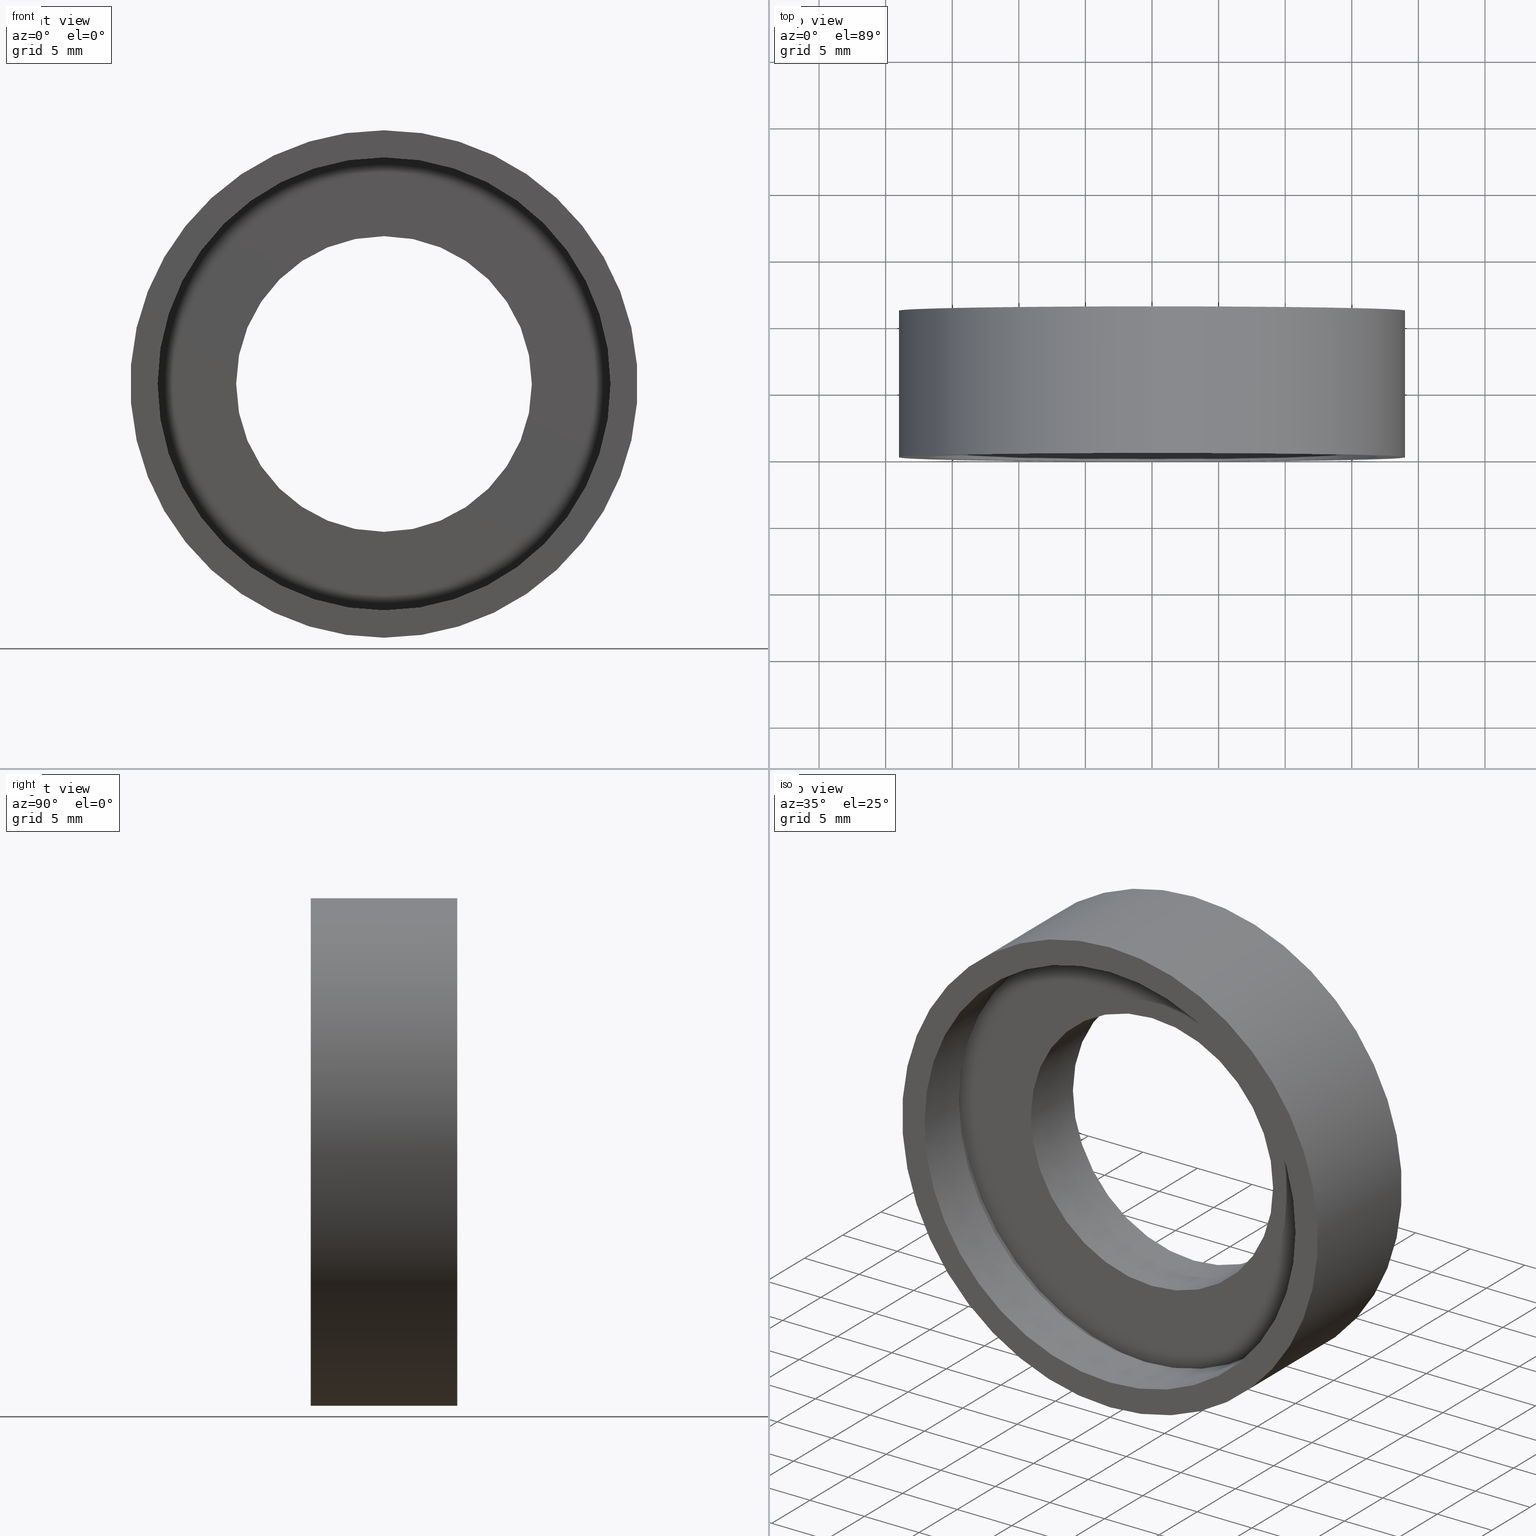
[diagram: canonical four-view strip — front | top / right | iso, engineering-drawing reading convention]
A machine part, canonical four-view strip (front | top / right | iso — engineering-drawing reading convention). The complete STEP part file that produces these views, byte-faithful:
ISO-10303-21;
HEADER;
FILE_DESCRIPTION (( 'STEP AP214' ),
    '1' );
FILE_NAME ('504059.STEP',
    '2019-10-09T07:13:55',
    ( 'user' ),
    ( '΢���й�' ),
    'SwSTEP 2.0',
    'SolidWorks 2016',
    '' );
FILE_SCHEMA (( 'AUTOMOTIVE_DESIGN' ));
ENDSEC;

DATA;
#1 = FACE_OUTER_BOUND ( 'NONE', #420, .T. ) ;
#2 = FILL_AREA_STYLE ('',( #275 ) ) ;
#3 = ADVANCED_FACE ( 'NONE', ( #67 ), #272, .F. ) ;
#4 = CARTESIAN_POINT ( 'NONE',  ( 0.0000000000000000000, 5.499999999999998200, 0.0000000000000000000 ) ) ;
#5 = DIRECTION ( 'NONE',  ( -0.0000000000000000000, 1.000000000000000000, -0.0000000000000000000 ) ) ;
#6 = CARTESIAN_POINT ( 'NONE',  ( 2.081899558550501500E-015, 0.0000000000000000000, -17.00000000000000700 ) ) ;
#7 = DIRECTION ( 'NONE',  ( -0.0000000000000000000, 1.000000000000000000, -0.0000000000000000000 ) ) ;
#8 =( LENGTH_UNIT ( ) NAMED_UNIT ( * ) SI_UNIT ( .MILLI., .METRE. ) );
#9 = AXIS2_PLACEMENT_3D ( 'NONE', #241, #417, #194 ) ;
#10 = FILL_AREA_STYLE_COLOUR ( '', #413 ) ;
#11 = ADVANCED_FACE ( 'NONE', ( #22 ), #390, .F. ) ;
#12 = FACE_BOUND ( 'NONE', #68, .T. ) ;
#13 = EDGE_LOOP ( 'NONE', ( #395, #223, #351, #171 ) ) ;
#14 = EDGE_LOOP ( 'NONE', ( #301, #315 ) ) ;
#15 = ORIENTED_EDGE ( 'NONE', *, *, #387, .T. ) ;
#16 = MECHANICAL_DESIGN_GEOMETRIC_PRESENTATION_REPRESENTATION (  '', ( #419 ), #81 ) ;
#17 = DIRECTION ( 'NONE',  ( 0.0000000000000000000, 0.0000000000000000000, 1.000000000000000000 ) ) ;
#18 = EDGE_CURVE ( 'NONE', #350, #141, #128, .T. ) ;
#19 = DIRECTION ( 'NONE',  ( 0.0000000000000000000, 0.0000000000000000000, 1.000000000000000000 ) ) ;
#20 = VERTEX_POINT ( 'NONE', #54 ) ;
#21 = EDGE_LOOP ( 'NONE', ( #208, #15 ) ) ;
#22 = FACE_OUTER_BOUND ( 'NONE', #105, .T. ) ;
#23 = PRESENTATION_LAYER_ASSIGNMENT (  '', '', ( #190 ) ) ;
#24 =( GEOMETRIC_REPRESENTATION_CONTEXT ( 3 ) GLOBAL_UNCERTAINTY_ASSIGNED_CONTEXT ( ( #328 ) ) GLOBAL_UNIT_ASSIGNED_CONTEXT ( ( #202, #192, #373 ) ) REPRESENTATION_CONTEXT ( 'NONE', 'WORKASPACE' ) );
#25 = CARTESIAN_POINT ( 'NONE',  ( 0.0000000000000000000, 60.02082041425541100, 17.00000000000000700 ) ) ;
#26 = AXIS2_PLACEMENT_3D ( 'NONE', #108, #195, #185 ) ;
#27 = CARTESIAN_POINT ( 'NONE',  ( 2.332952152375708400E-015, 60.02082041425541100, -19.05000000000000400 ) ) ;
#28 = ORIENTED_EDGE ( 'NONE', *, *, #226, .T. ) ;
#29 = VERTEX_POINT ( 'NONE', #127 ) ;
#30 = EDGE_CURVE ( 'NONE', #39, #279, #84, .T. ) ;
#31 = CIRCLE ( 'NONE', #216, 19.05000000000000400 ) ;
#32 = ORIENTED_EDGE ( 'NONE', *, *, #30, .F. ) ;
#33 = LINE ( 'NONE', #293, #266 ) ;
#34 = EDGE_CURVE ( 'NONE', #20, #72, #189, .T. ) ;
#35 = PRESENTATION_LAYER_ASSIGNMENT (  '', '', ( #209 ) ) ;
#36 = PRESENTATION_STYLE_ASSIGNMENT (( #310 ) ) ;
#37 = FACE_OUTER_BOUND ( 'NONE', #14, .T. ) ;
#38 = DIRECTION ( 'NONE',  ( 0.0000000000000000000, 0.0000000000000000000, 1.000000000000000000 ) ) ;
#39 = VERTEX_POINT ( 'NONE', #6 ) ;
#40 = EDGE_CURVE ( 'NONE', #93, #99, #33, .T. ) ;
#41 = AXIS2_PLACEMENT_3D ( 'NONE', #259, #74, #92 ) ;
#42 = CARTESIAN_POINT ( 'NONE',  ( 0.0000000000000000000, 60.02082041425541100, 0.0000000000000000000 ) ) ;
#43 =( GEOMETRIC_REPRESENTATION_CONTEXT ( 3 ) GLOBAL_UNCERTAINTY_ASSIGNED_CONTEXT ( ( #287 ) ) GLOBAL_UNIT_ASSIGNED_CONTEXT ( ( #150, #361, #338 ) ) REPRESENTATION_CONTEXT ( 'NONE', 'WORKASPACE' ) );
#44 = LINE ( 'NONE', #27, #376 ) ;
#45 = CYLINDRICAL_SURFACE ( 'NONE', #86, 19.05000000000000400 ) ;
#46 = ADVANCED_BREP_SHAPE_REPRESENTATION ( '504059', ( #277, #384 ), #24 ) ;
#47 = ORIENTED_EDGE ( 'NONE', *, *, #18, .F. ) ;
#48 = CYLINDRICAL_SURFACE ( 'NONE', #286, 11.10000000000000500 ) ;
#49 = CARTESIAN_POINT ( 'NONE',  ( 0.0000000000000000000, 5.499999999999998200, 17.60000000000001200 ) ) ;
#50 = COLOUR_RGB ( '',1.000000000000000000, 1.000000000000000000, 1.000000000000000000 ) ;
#51 = ADVANCED_FACE ( 'NONE', ( #335 ), #48, .F. ) ;
#52 = ADVANCED_FACE ( 'NONE', ( #238, #308 ), #398, .F. ) ;
#53 = UNCERTAINTY_MEASURE_WITH_UNIT (LENGTH_MEASURE( 1.000000000000000100E-005 ), #264, 'distance_accuracy_value', 'NONE');
#54 = CARTESIAN_POINT ( 'NONE',  ( 0.0000000000000000000, 0.0000000000000000000, 19.05000000000000400 ) ) ;
#55 = ADVANCED_FACE ( 'NONE', ( #399 ), #329, .F. ) ;
#56 = PRESENTATION_STYLE_ASSIGNMENT (( #396 ) ) ;
#57 =( NAMED_UNIT ( * ) SI_UNIT ( $, .STERADIAN. ) SOLID_ANGLE_UNIT ( ) );
#58 = VERTEX_POINT ( 'NONE', #151 ) ;
#59 = FACE_BOUND ( 'NONE', #222, .T. ) ;
#60 = ADVANCED_FACE ( 'NONE', ( #251 ), #246, .F. ) ;
#61 = CIRCLE ( 'NONE', #337, 19.05000000000000400 ) ;
#62 = ORIENTED_EDGE ( 'NONE', *, *, #366, .F. ) ;
#63 = SURFACE_SIDE_STYLE ('',( #342 ) ) ;
#64 = EDGE_LOOP ( 'NONE', ( #247, #179 ) ) ;
#65 =( NAMED_UNIT ( * ) PLANE_ANGLE_UNIT ( ) SI_UNIT ( $, .RADIAN. ) );
#66 = VECTOR ( 'NONE', #7, 1000.000000000000000 ) ;
#67 = FACE_OUTER_BOUND ( 'NONE', #13, .T. ) ;
#68 = EDGE_LOOP ( 'NONE', ( #146, #69 ) ) ;
#69 = ORIENTED_EDGE ( 'NONE', *, *, #394, .T. ) ;
#70 = SURFACE_STYLE_USAGE ( .BOTH. , #63 ) ;
#71 = DIRECTION ( 'NONE',  ( -0.0000000000000000000, 1.000000000000000000, -0.0000000000000000000 ) ) ;
#72 = VERTEX_POINT ( 'NONE', #369 ) ;
#73 =( LENGTH_UNIT ( ) NAMED_UNIT ( * ) SI_UNIT ( .MILLI., .METRE. ) );
#74 = DIRECTION ( 'NONE',  ( -0.0000000000000000000, 1.000000000000000000, -0.0000000000000000000 ) ) ;
#75 = SURFACE_SIDE_STYLE ('',( #307 ) ) ;
#76 = VECTOR ( 'NONE', #183, 1000.000000000000000 ) ;
#77 = ORIENTED_EDGE ( 'NONE', *, *, #237, .F. ) ;
#78 =( LENGTH_UNIT ( ) NAMED_UNIT ( * ) SI_UNIT ( .MILLI., .METRE. ) );
#79 = UNCERTAINTY_MEASURE_WITH_UNIT (LENGTH_MEASURE( 1.000000000000000100E-005 ), #8, 'distance_accuracy_value', 'NONE');
#80 = DIRECTION ( 'NONE',  ( -0.0000000000000000000, 1.000000000000000000, -0.0000000000000000000 ) ) ;
#81 =( GEOMETRIC_REPRESENTATION_CONTEXT ( 3 ) GLOBAL_UNCERTAINTY_ASSIGNED_CONTEXT ( ( #156 ) ) GLOBAL_UNIT_ASSIGNED_CONTEXT ( ( #73, #415, #311 ) ) REPRESENTATION_CONTEXT ( 'NONE', 'WORKASPACE' ) );
#82 = FILL_AREA_STYLE ('',( #274 ) ) ;
#83 = APPLICATION_PROTOCOL_DEFINITION ( 'draft international standard', 'automotive_design', 1998, #431 ) ;
#84 = LINE ( 'NONE', #221, #76 ) ;
#85 =( NAMED_UNIT ( * ) SI_UNIT ( $, .STERADIAN. ) SOLID_ANGLE_UNIT ( ) );
#86 = AXIS2_PLACEMENT_3D ( 'NONE', #358, #166, #38 ) ;
#87 = FILL_AREA_STYLE ('',( #97 ) ) ;
#88 = EDGE_CURVE ( 'NONE', #142, #20, #61, .T. ) ;
#89 = DIRECTION ( 'NONE',  ( -0.0000000000000000000, 1.000000000000000000, -0.0000000000000000000 ) ) ;
#90 = DIRECTION ( 'NONE',  ( -0.0000000000000000000, 1.000000000000000000, 0.0000000000000000000 ) ) ;
#91 = AXIS2_PLACEMENT_3D ( 'NONE', #145, #407, #175 ) ;
#92 = DIRECTION ( 'NONE',  ( 0.0000000000000000000, 0.0000000000000000000, 1.000000000000000000 ) ) ;
#93 = VERTEX_POINT ( 'NONE', #372 ) ;
#94 = PRODUCT_RELATED_PRODUCT_CATEGORY ( 'part', '', ( #408 ) ) ;
#95 = LINE ( 'NONE', #125, #169 ) ;
#96 = DIRECTION ( 'NONE',  ( -0.0000000000000000000, 1.000000000000000000, -0.0000000000000000000 ) ) ;
#97 = FILL_AREA_STYLE_COLOUR ( '', #50 ) ;
#98 = CYLINDRICAL_SURFACE ( 'NONE', #377, 19.05000000000000400 ) ;
#99 = VERTEX_POINT ( 'NONE', #249 ) ;
#100 = ORIENTED_EDGE ( 'NONE', *, *, #230, .T. ) ;
#101 = CIRCLE ( 'NONE', #26, 19.05000000000000400 ) ;
#102 = SHAPE_DEFINITION_REPRESENTATION ( #397, #46 ) ;
#103 = ADVANCED_FACE ( 'NONE', ( #1, #12 ), #218, .F. ) ;
#104 = CARTESIAN_POINT ( 'NONE',  ( 2.081899558550501500E-015, 4.499999999999997300, -17.00000000000000700 ) ) ;
#105 = EDGE_LOOP ( 'NONE', ( #278, #234, #291, #28 ) ) ;
#106 = ORIENTED_EDGE ( 'NONE', *, *, #348, .T. ) ;
#107 = ADVANCED_FACE ( 'NONE', ( #115 ), #220, .F. ) ;
#108 = CARTESIAN_POINT ( 'NONE',  ( 0.0000000000000000000, 10.99999999999999600, 0.0000000000000000000 ) ) ;
#109 = DIRECTION ( 'NONE',  ( -0.0000000000000000000, 1.000000000000000000, -0.0000000000000000000 ) ) ;
#110 = FILL_AREA_STYLE ('',( #10 ) ) ;
#111 = CIRCLE ( 'NONE', #258, 17.00000000000000700 ) ;
#112 = EDGE_LOOP ( 'NONE', ( #263, #332, #159, #139 ) ) ;
#113 = PRESENTATION_STYLE_ASSIGNMENT (( #199 ) ) ;
#114 = DIRECTION ( 'NONE',  ( -0.0000000000000000000, 1.000000000000000000, -0.0000000000000000000 ) ) ;
#115 = FACE_OUTER_BOUND ( 'NONE', #172, .T. ) ;
#116 = AXIS2_PLACEMENT_3D ( 'NONE', #118, #292, #130 ) ;
#117 = ORIENTED_EDGE ( 'NONE', *, *, #409, .T. ) ;
#118 = CARTESIAN_POINT ( 'NONE',  ( 0.0000000000000000000, 10.99999999999999600, 0.0000000000000000000 ) ) ;
#119 = AXIS2_PLACEMENT_3D ( 'NONE', #148, #370, #17 ) ;
#120 = SURFACE_SIDE_STYLE ('',( #429 ) ) ;
#121 = CLOSED_SHELL ( 'NONE', ( #155, #51, #3, #107, #359, #60, #52, #55, #103, #11, #126, #319 ) ) ;
#122 = EDGE_LOOP ( 'NONE', ( #219, #267 ) ) ;
#123 = PRESENTATION_STYLE_ASSIGNMENT (( #70 ) ) ;
#124 = CARTESIAN_POINT ( 'NONE',  ( 11.10000000000000700, 11.00000000000000000, 0.0000000000000000000 ) ) ;
#125 = CARTESIAN_POINT ( 'NONE',  ( 0.0000000000000000000, 60.02082041425541100, 17.60000000000001200 ) ) ;
#126 = ADVANCED_FACE ( 'NONE', ( #411, #37 ), #294, .F. ) ;
#127 = CARTESIAN_POINT ( 'NONE',  ( 0.0000000000000000000, 0.0000000000000000000, 17.00000000000000700 ) ) ;
#128 = LINE ( 'NONE', #215, #317 ) ;
#129 = AXIS2_PLACEMENT_3D ( 'NONE', #344, #80, #374 ) ;
#130 = DIRECTION ( 'NONE',  ( 0.0000000000000000000, 0.0000000000000000000, 1.000000000000000000 ) ) ;
#131 = ORIENTED_EDGE ( 'NONE', *, *, #357, .F. ) ;
#132 = DIRECTION ( 'NONE',  ( -0.0000000000000000000, 1.000000000000000000, -0.0000000000000000000 ) ) ;
#133 = CARTESIAN_POINT ( 'NONE',  ( 17.00000000000000700, 4.499999999999999100, 0.0000000000000000000 ) ) ;
#134 = CARTESIAN_POINT ( 'NONE',  ( 2.155378366499343200E-015, 5.499999999999998200, -17.60000000000001200 ) ) ;
#135 = PRESENTATION_LAYER_ASSIGNMENT (  '', '', ( #355 ) ) ;
#136 = CIRCLE ( 'NONE', #341, 17.00000000000000700 ) ;
#137 = CARTESIAN_POINT ( 'NONE',  ( 1.359357947053562700E-015, 5.499999999999998200, -11.10000000000000500 ) ) ;
#138 = PRESENTATION_STYLE_ASSIGNMENT (( #300 ) ) ;
#139 = ORIENTED_EDGE ( 'NONE', *, *, #40, .F. ) ;
#140 = EDGE_CURVE ( 'NONE', #141, #302, #273, .T. ) ;
#141 = VERTEX_POINT ( 'NONE', #134 ) ;
#142 = VERTEX_POINT ( 'NONE', #288 ) ;
#143 = STYLED_ITEM ( 'NONE', ( #123 ), #46 ) ;
#144 = DIRECTION ( 'NONE',  ( -0.0000000000000000000, 1.000000000000000000, -0.0000000000000000000 ) ) ;
#145 = CARTESIAN_POINT ( 'NONE',  ( 0.0000000000000000000, 60.02082041425541100, 0.0000000000000000000 ) ) ;
#146 = ORIENTED_EDGE ( 'NONE', *, *, #426, .T. ) ;
#147 = CARTESIAN_POINT ( 'NONE',  ( 0.0000000000000000000, 60.02082041425541100, 0.0000000000000000000 ) ) ;
#148 = CARTESIAN_POINT ( 'NONE',  ( 19.05000000000000400, -5.143516556418878000E-016, 0.0000000000000000000 ) ) ;
#149 = MECHANICAL_DESIGN_GEOMETRIC_PRESENTATION_REPRESENTATION (  '', ( #143 ), #43 ) ;
#150 =( LENGTH_UNIT ( ) NAMED_UNIT ( * ) SI_UNIT ( .MILLI., .METRE. ) );
#151 = CARTESIAN_POINT ( 'NONE',  ( 1.359357947053563100E-015, 10.99999999999999600, -11.10000000000000700 ) ) ;
#152 = DIRECTION ( 'NONE',  ( -0.0000000000000000000, 1.000000000000000000, -0.0000000000000000000 ) ) ;
#153 = PRODUCT_CONTEXT ( 'NONE', #431, 'mechanical' ) ;
#154 = AXIS2_PLACEMENT_3D ( 'NONE', #4, #347, #204 ) ;
#155 = ADVANCED_FACE ( 'NONE', ( #212 ), #45, .T. ) ;
#156 = UNCERTAINTY_MEASURE_WITH_UNIT (LENGTH_MEASURE( 1.000000000000000100E-005 ), #73, 'distance_accuracy_value', 'NONE');
#157 = DIRECTION ( 'NONE',  ( 0.0000000000000000000, 0.0000000000000000000, 1.000000000000000000 ) ) ;
#158 = SURFACE_STYLE_FILL_AREA ( #268 ) ;
#159 = ORIENTED_EDGE ( 'NONE', *, *, #357, .T. ) ;
#160 = FILL_AREA_STYLE_COLOUR ( '', #298 ) ;
#161 = ORIENTED_EDGE ( 'NONE', *, *, #88, .T. ) ;
#162 = ORIENTED_EDGE ( 'NONE', *, *, #324, .F. ) ;
#163 = APPLICATION_CONTEXT ( 'automotive_design' ) ;
#164 = PRODUCT_DEFINITION_CONTEXT ( 'detailed design', #163, 'design' ) ;
#165 = EDGE_CURVE ( 'NONE', #39, #29, #136, .T. ) ;
#166 = DIRECTION ( 'NONE',  ( -0.0000000000000000000, 1.000000000000000000, -0.0000000000000000000 ) ) ;
#167 = ORIENTED_EDGE ( 'NONE', *, *, #345, .F. ) ;
#168 = DIRECTION ( 'NONE',  ( 0.0000000000000000000, 0.0000000000000000000, 1.000000000000000000 ) ) ;
#169 = VECTOR ( 'NONE', #340, 1000.000000000000000 ) ;
#170 = ORIENTED_EDGE ( 'NONE', *, *, #30, .T. ) ;
#171 = ORIENTED_EDGE ( 'NONE', *, *, #409, .F. ) ;
#172 = EDGE_LOOP ( 'NONE', ( #381, #170, #106, #162 ) ) ;
#173 = SURFACE_SIDE_STYLE ('',( #158 ) ) ;
#174 = UNCERTAINTY_MEASURE_WITH_UNIT (LENGTH_MEASURE( 1.000000000000000100E-005 ), #410, 'distance_accuracy_value', 'NONE');
#175 = DIRECTION ( 'NONE',  ( 0.0000000000000000000, 0.0000000000000000000, 1.000000000000000000 ) ) ;
#176 = PRESENTATION_STYLE_ASSIGNMENT (( #231 ) ) ;
#177 =( GEOMETRIC_REPRESENTATION_CONTEXT ( 3 ) GLOBAL_UNCERTAINTY_ASSIGNED_CONTEXT ( ( #229 ) ) GLOBAL_UNIT_ASSIGNED_CONTEXT ( ( #78, #65, #85 ) ) REPRESENTATION_CONTEXT ( 'NONE', 'WORKASPACE' ) );
#178 = ORIENTED_EDGE ( 'NONE', *, *, #165, .T. ) ;
#179 = ORIENTED_EDGE ( 'NONE', *, *, #88, .F. ) ;
#180 = SURFACE_STYLE_FILL_AREA ( #2 ) ;
#181 = DIRECTION ( 'NONE',  ( -0.0000000000000000000, 1.000000000000000000, -0.0000000000000000000 ) ) ;
#182 = PRODUCT_DEFINITION_FORMATION_WITH_SPECIFIED_SOURCE ( '�κ�', '', #408, .NOT_KNOWN. ) ;
#183 = DIRECTION ( 'NONE',  ( -0.0000000000000000000, 1.000000000000000000, -0.0000000000000000000 ) ) ;
#184 = DIRECTION ( 'NONE',  ( 0.0000000000000000000, 0.0000000000000000000, 1.000000000000000000 ) ) ;
#185 = DIRECTION ( 'NONE',  ( 0.0000000000000000000, 0.0000000000000000000, 1.000000000000000000 ) ) ;
#186 = AXIS2_PLACEMENT_3D ( 'NONE', #260, #421, #191 ) ;
#187 = CARTESIAN_POINT ( 'NONE',  ( 0.0000000000000000000, 4.499999999999997300, 0.0000000000000000000 ) ) ;
#188 = COLOUR_RGB ( '',1.000000000000000000, 1.000000000000000000, 1.000000000000000000 ) ;
#189 = LINE ( 'NONE', #405, #306 ) ;
#190 = STYLED_ITEM ( 'NONE', ( #176 ), #107 ) ;
#191 = DIRECTION ( 'NONE',  ( 0.0000000000000000000, 0.0000000000000000000, 1.000000000000000000 ) ) ;
#192 =( NAMED_UNIT ( * ) PLANE_ANGLE_UNIT ( ) SI_UNIT ( $, .RADIAN. ) );
#193 = MECHANICAL_DESIGN_GEOMETRIC_PRESENTATION_REPRESENTATION (  '', ( #209 ), #177 ) ;
#194 = DIRECTION ( 'NONE',  ( 0.0000000000000000000, 0.0000000000000000000, 1.000000000000000000 ) ) ;
#195 = DIRECTION ( 'NONE',  ( -0.0000000000000000000, 1.000000000000000000, -0.0000000000000000000 ) ) ;
#196 = ORIENTED_EDGE ( 'NONE', *, *, #312, .T. ) ;
#197 = AXIS2_PLACEMENT_3D ( 'NONE', #252, #305, #388 ) ;
#198 = DIRECTION ( 'NONE',  ( 0.0000000000000000000, 0.0000000000000000000, 1.000000000000000000 ) ) ;
#199 = SURFACE_STYLE_USAGE ( .BOTH. , #211 ) ;
#200 = ORIENTED_EDGE ( 'NONE', *, *, #366, .T. ) ;
#201 = EDGE_LOOP ( 'NONE', ( #297, #131 ) ) ;
#202 =( LENGTH_UNIT ( ) NAMED_UNIT ( * ) SI_UNIT ( .MILLI., .METRE. ) );
#203 = DIRECTION ( 'NONE',  ( 0.0000000000000000000, 0.0000000000000000000, 1.000000000000000000 ) ) ;
#204 = DIRECTION ( 'NONE',  ( 0.0000000000000000000, 0.0000000000000000000, 1.000000000000000000 ) ) ;
#205 = AXIS2_PLACEMENT_3D ( 'NONE', #422, #250, #296 ) ;
#206 = VECTOR ( 'NONE', #289, 1000.000000000000000 ) ;
#207 = COLOUR_RGB ( '',1.000000000000000000, 1.000000000000000000, 1.000000000000000000 ) ;
#208 = ORIENTED_EDGE ( 'NONE', *, *, #303, .T. ) ;
#209 = STYLED_ITEM ( 'NONE', ( #36 ), #277 ) ;
#210 = STYLED_ITEM ( 'NONE', ( #113 ), #11 ) ;
#211 = SURFACE_SIDE_STYLE ('',( #180 ) ) ;
#212 = FACE_OUTER_BOUND ( 'NONE', #331, .T. ) ;
#213 = ORIENTED_EDGE ( 'NONE', *, *, #312, .F. ) ;
#214 = CARTESIAN_POINT ( 'NONE',  ( 0.0000000000000000000, 4.499999999999997300, 0.0000000000000000000 ) ) ;
#215 = CARTESIAN_POINT ( 'NONE',  ( 2.155378366499343200E-015, 60.02082041425541100, -17.60000000000001200 ) ) ;
#216 = AXIS2_PLACEMENT_3D ( 'NONE', #402, #5, #184 ) ;
#217 = CARTESIAN_POINT ( 'NONE',  ( 0.0000000000000000000, 4.499999999999997300, 0.0000000000000000000 ) ) ;
#218 = PLANE ( 'NONE',  #232 ) ;
#219 = ORIENTED_EDGE ( 'NONE', *, *, #270, .F. ) ;
#220 = CYLINDRICAL_SURFACE ( 'NONE', #313, 17.00000000000000700 ) ;
#221 = CARTESIAN_POINT ( 'NONE',  ( 2.081899558550501500E-015, 60.02082041425541100, -17.00000000000000700 ) ) ;
#222 = EDGE_LOOP ( 'NONE', ( #196, #178 ) ) ;
#223 = ORIENTED_EDGE ( 'NONE', *, *, #18, .T. ) ;
#224 = CARTESIAN_POINT ( 'NONE',  ( 17.60000000000001200, 5.499999999999998200, 0.0000000000000000000 ) ) ;
#225 = DIRECTION ( 'NONE',  ( 0.0000000000000000000, -1.000000000000000000, 0.0000000000000000000 ) ) ;
#226 = EDGE_CURVE ( 'NONE', #99, #58, #368, .T. ) ;
#227 = CIRCLE ( 'NONE', #362, 17.60000000000001200 ) ;
#228 = CIRCLE ( 'NONE', #242, 17.00000000000000700 ) ;
#229 = UNCERTAINTY_MEASURE_WITH_UNIT (LENGTH_MEASURE( 1.000000000000000100E-005 ), #78, 'distance_accuracy_value', 'NONE');
#230 = EDGE_CURVE ( 'NONE', #20, #142, #31, .T. ) ;
#231 = SURFACE_STYLE_USAGE ( .BOTH. , #424 ) ;
#232 = AXIS2_PLACEMENT_3D ( 'NONE', #224, #90, #383 ) ;
#233 = VERTEX_POINT ( 'NONE', #269 ) ;
#234 = ORIENTED_EDGE ( 'NONE', *, *, #426, .F. ) ;
#235 = DIRECTION ( 'NONE',  ( 0.0000000000000000000, 0.0000000000000000000, 1.000000000000000000 ) ) ;
#236 = AXIS2_PLACEMENT_3D ( 'NONE', #428, #96, #299 ) ;
#237 = EDGE_CURVE ( 'NONE', #72, #257, #101, .T. ) ;
#238 = FACE_BOUND ( 'NONE', #122, .T. ) ;
#239 = ORIENTED_EDGE ( 'NONE', *, *, #345, .T. ) ;
#240 = DIRECTION ( 'NONE',  ( 0.0000000000000000000, 0.0000000000000000000, 1.000000000000000000 ) ) ;
#241 = CARTESIAN_POINT ( 'NONE',  ( 0.0000000000000000000, 5.499999999999998200, 0.0000000000000000000 ) ) ;
#242 = AXIS2_PLACEMENT_3D ( 'NONE', #280, #318, #346 ) ;
#243 = SURFACE_STYLE_FILL_AREA ( #87 ) ;
#244 = CIRCLE ( 'NONE', #236, 17.00000000000000700 ) ;
#245 = EDGE_CURVE ( 'NONE', #290, #58, #282, .T. ) ;
#246 = CYLINDRICAL_SURFACE ( 'NONE', #91, 17.00000000000000700 ) ;
#247 = ORIENTED_EDGE ( 'NONE', *, *, #230, .F. ) ;
#248 = AXIS2_PLACEMENT_3D ( 'NONE', #133, #285, #386 ) ;
#249 = CARTESIAN_POINT ( 'NONE',  ( 0.0000000000000000000, 10.99999999999999600, 11.10000000000000700 ) ) ;
#250 = DIRECTION ( 'NONE',  ( -0.0000000000000000000, 1.000000000000000000, -0.0000000000000000000 ) ) ;
#251 = FACE_OUTER_BOUND ( 'NONE', #314, .T. ) ;
#252 = CARTESIAN_POINT ( 'NONE',  ( 0.0000000000000000000, 60.02082041425541100, 0.0000000000000000000 ) ) ;
#253 = CARTESIAN_POINT ( 'NONE',  ( 0.0000000000000000000, 0.0000000000000000000, 0.0000000000000000000 ) ) ;
#254 =( NAMED_UNIT ( * ) SI_UNIT ( $, .STERADIAN. ) SOLID_ANGLE_UNIT ( ) );
#255 = CIRCLE ( 'NONE', #276, 11.10000000000000700 ) ;
#256 = ORIENTED_EDGE ( 'NONE', *, *, #34, .F. ) ;
#257 = VERTEX_POINT ( 'NONE', #262 ) ;
#258 = AXIS2_PLACEMENT_3D ( 'NONE', #214, #114, #203 ) ;
#259 = CARTESIAN_POINT ( 'NONE',  ( 0.0000000000000000000, 5.499999999999998200, 0.0000000000000000000 ) ) ;
#260 = CARTESIAN_POINT ( 'NONE',  ( 0.0000000000000000000, 60.02082041425541100, 0.0000000000000000000 ) ) ;
#261 =( GEOMETRIC_REPRESENTATION_CONTEXT ( 3 ) GLOBAL_UNCERTAINTY_ASSIGNED_CONTEXT ( ( #174 ) ) GLOBAL_UNIT_ASSIGNED_CONTEXT ( ( #410, #354, #326 ) ) REPRESENTATION_CONTEXT ( 'NONE', 'WORKASPACE' ) );
#262 = CARTESIAN_POINT ( 'NONE',  ( 2.332952152375708400E-015, 10.99999999999999600, -19.05000000000000400 ) ) ;
#263 = ORIENTED_EDGE ( 'NONE', *, *, #394, .F. ) ;
#264 =( LENGTH_UNIT ( ) NAMED_UNIT ( * ) SI_UNIT ( .MILLI., .METRE. ) );
#265 = DIRECTION ( 'NONE',  ( 0.0000000000000000000, 0.0000000000000000000, 1.000000000000000000 ) ) ;
#266 = VECTOR ( 'NONE', #132, 1000.000000000000000 ) ;
#267 = ORIENTED_EDGE ( 'NONE', *, *, #348, .F. ) ;
#268 = FILL_AREA_STYLE ('',( #160 ) ) ;
#269 = CARTESIAN_POINT ( 'NONE',  ( 0.0000000000000000000, 4.499999999999997300, 17.00000000000000700 ) ) ;
#270 = EDGE_CURVE ( 'NONE', #233, #279, #244, .T. ) ;
#271 = FILL_AREA_STYLE_COLOUR ( '', #207 ) ;
#272 = CYLINDRICAL_SURFACE ( 'NONE', #343, 17.60000000000001200 ) ;
#273 = CIRCLE ( 'NONE', #154, 17.60000000000001200 ) ;
#274 = FILL_AREA_STYLE_COLOUR ( '', #188 ) ;
#275 = FILL_AREA_STYLE_COLOUR ( '', #423 ) ;
#276 = AXIS2_PLACEMENT_3D ( 'NONE', #309, #89, #157 ) ;
#277 = MANIFOLD_SOLID_BREP ( '��ת1', #121 ) ;
#278 = ORIENTED_EDGE ( 'NONE', *, *, #245, .F. ) ;
#279 = VERTEX_POINT ( 'NONE', #104 ) ;
#280 = CARTESIAN_POINT ( 'NONE',  ( 0.0000000000000000000, 0.0000000000000000000, 0.0000000000000000000 ) ) ;
#281 = PRESENTATION_LAYER_ASSIGNMENT (  '', '', ( #143 ) ) ;
#282 = LINE ( 'NONE', #434, #66 ) ;
#283 = ORIENTED_EDGE ( 'NONE', *, *, #324, .T. ) ;
#284 = ORIENTED_EDGE ( 'NONE', *, *, #270, .T. ) ;
#285 = DIRECTION ( 'NONE',  ( 0.0000000000000000000, -1.000000000000000000, 0.0000000000000000000 ) ) ;
#286 = AXIS2_PLACEMENT_3D ( 'NONE', #400, #412, #367 ) ;
#287 = UNCERTAINTY_MEASURE_WITH_UNIT (LENGTH_MEASURE( 1.000000000000000100E-005 ), #150, 'distance_accuracy_value', 'NONE');
#288 = CARTESIAN_POINT ( 'NONE',  ( 2.332952152375708400E-015, 0.0000000000000000000, -19.05000000000000400 ) ) ;
#289 = DIRECTION ( 'NONE',  ( -0.0000000000000000000, 1.000000000000000000, -0.0000000000000000000 ) ) ;
#290 = VERTEX_POINT ( 'NONE', #137 ) ;
#291 = ORIENTED_EDGE ( 'NONE', *, *, #40, .T. ) ;
#292 = DIRECTION ( 'NONE',  ( -0.0000000000000000000, 1.000000000000000000, -0.0000000000000000000 ) ) ;
#293 = CARTESIAN_POINT ( 'NONE',  ( 0.0000000000000000000, 60.02082041425541100, 11.10000000000000500 ) ) ;
#294 = PLANE ( 'NONE',  #365 ) ;
#295 =( GEOMETRIC_REPRESENTATION_CONTEXT ( 3 ) GLOBAL_UNCERTAINTY_ASSIGNED_CONTEXT ( ( #53 ) ) GLOBAL_UNIT_ASSIGNED_CONTEXT ( ( #264, #416, #254 ) ) REPRESENTATION_CONTEXT ( 'NONE', 'WORKASPACE' ) );
#296 = DIRECTION ( 'NONE',  ( 0.0000000000000000000, 0.0000000000000000000, 1.000000000000000000 ) ) ;
#297 = ORIENTED_EDGE ( 'NONE', *, *, #226, .F. ) ;
#298 = COLOUR_RGB ( '',1.000000000000000000, 1.000000000000000000, 1.000000000000000000 ) ;
#299 = DIRECTION ( 'NONE',  ( 0.0000000000000000000, 0.0000000000000000000, 1.000000000000000000 ) ) ;
#300 = SURFACE_STYLE_USAGE ( .BOTH. , #120 ) ;
#301 = ORIENTED_EDGE ( 'NONE', *, *, #237, .T. ) ;
#302 = VERTEX_POINT ( 'NONE', #49 ) ;
#303 = EDGE_CURVE ( 'NONE', #330, #350, #321, .T. ) ;
#304 = CARTESIAN_POINT ( 'NONE',  ( 0.0000000000000000000, 4.499999999999997300, 17.60000000000001200 ) ) ;
#305 = DIRECTION ( 'NONE',  ( -0.0000000000000000000, 1.000000000000000000, -0.0000000000000000000 ) ) ;
#306 = VECTOR ( 'NONE', #71, 1000.000000000000000 ) ;
#307 = SURFACE_STYLE_FILL_AREA ( #82 ) ;
#308 = FACE_OUTER_BOUND ( 'NONE', #21, .T. ) ;
#309 = CARTESIAN_POINT ( 'NONE',  ( 0.0000000000000000000, 10.99999999999999600, 0.0000000000000000000 ) ) ;
#310 = SURFACE_STYLE_USAGE ( .BOTH. , #75 ) ;
#311 =( NAMED_UNIT ( * ) SI_UNIT ( $, .STERADIAN. ) SOLID_ANGLE_UNIT ( ) );
#312 = EDGE_CURVE ( 'NONE', #29, #39, #228, .T. ) ;
#313 = AXIS2_PLACEMENT_3D ( 'NONE', #403, #433, #240 ) ;
#314 = EDGE_LOOP ( 'NONE', ( #32, #213, #283, #284 ) ) ;
#315 = ORIENTED_EDGE ( 'NONE', *, *, #371, .T. ) ;
#316 = FILL_AREA_STYLE ('',( #271 ) ) ;
#317 = VECTOR ( 'NONE', #181, 1000.000000000000000 ) ;
#318 = DIRECTION ( 'NONE',  ( -0.0000000000000000000, 1.000000000000000000, -0.0000000000000000000 ) ) ;
#319 = ADVANCED_FACE ( 'NONE', ( #339 ), #98, .T. ) ;
#320 = CIRCLE ( 'NONE', #205, 17.60000000000001200 ) ;
#321 = CIRCLE ( 'NONE', #363, 17.60000000000001200 ) ;
#322 = EDGE_LOOP ( 'NONE', ( #47, #425, #117, #239 ) ) ;
#323 = FACE_OUTER_BOUND ( 'NONE', #64, .T. ) ;
#324 = EDGE_CURVE ( 'NONE', #29, #233, #418, .T. ) ;
#325 = PRESENTATION_LAYER_ASSIGNMENT (  '', '', ( #419 ) ) ;
#326 =( NAMED_UNIT ( * ) SI_UNIT ( $, .STERADIAN. ) SOLID_ANGLE_UNIT ( ) );
#327 = MECHANICAL_DESIGN_GEOMETRIC_PRESENTATION_REPRESENTATION (  '', ( #355 ), #261 ) ;
#328 = UNCERTAINTY_MEASURE_WITH_UNIT (LENGTH_MEASURE( 1.000000000000000100E-005 ), #202, 'distance_accuracy_value', 'NONE');
#329 = CYLINDRICAL_SURFACE ( 'NONE', #197, 17.60000000000001200 ) ;
#330 = VERTEX_POINT ( 'NONE', #304 ) ;
#331 = EDGE_LOOP ( 'NONE', ( #100, #200, #77, #256 ) ) ;
#332 = ORIENTED_EDGE ( 'NONE', *, *, #245, .T. ) ;
#333 = MECHANICAL_DESIGN_GEOMETRIC_PRESENTATION_REPRESENTATION (  '', ( #190 ), #295 ) ;
#334 =( GEOMETRIC_REPRESENTATION_CONTEXT ( 3 ) GLOBAL_UNCERTAINTY_ASSIGNED_CONTEXT ( ( #79 ) ) GLOBAL_UNIT_ASSIGNED_CONTEXT ( ( #8, #389, #57 ) ) REPRESENTATION_CONTEXT ( 'NONE', 'WORKASPACE' ) );
#335 = FACE_OUTER_BOUND ( 'NONE', #112, .T. ) ;
#336 = APPLICATION_PROTOCOL_DEFINITION ( 'draft international standard', 'automotive_design', 1998, #163 ) ;
#337 = AXIS2_PLACEMENT_3D ( 'NONE', #432, #382, #380 ) ;
#338 =( NAMED_UNIT ( * ) SI_UNIT ( $, .STERADIAN. ) SOLID_ANGLE_UNIT ( ) );
#339 = FACE_OUTER_BOUND ( 'NONE', #391, .T. ) ;
#340 = DIRECTION ( 'NONE',  ( -0.0000000000000000000, 1.000000000000000000, -0.0000000000000000000 ) ) ;
#341 = AXIS2_PLACEMENT_3D ( 'NONE', #414, #152, #235 ) ;
#342 = SURFACE_STYLE_FILL_AREA ( #110 ) ;
#343 = AXIS2_PLACEMENT_3D ( 'NONE', #147, #375, #265 ) ;
#344 = CARTESIAN_POINT ( 'NONE',  ( 0.0000000000000000000, 10.99999999999999600, 0.0000000000000000000 ) ) ;
#345 = EDGE_CURVE ( 'NONE', #302, #141, #320, .T. ) ;
#346 = DIRECTION ( 'NONE',  ( 0.0000000000000000000, 0.0000000000000000000, 1.000000000000000000 ) ) ;
#347 = DIRECTION ( 'NONE',  ( -0.0000000000000000000, 1.000000000000000000, -0.0000000000000000000 ) ) ;
#348 = EDGE_CURVE ( 'NONE', #279, #233, #111, .T. ) ;
#349 = ORIENTED_EDGE ( 'NONE', *, *, #371, .F. ) ;
#350 = VERTEX_POINT ( 'NONE', #353 ) ;
#351 = ORIENTED_EDGE ( 'NONE', *, *, #140, .T. ) ;
#352 = PLANE ( 'NONE',  #119 ) ;
#353 = CARTESIAN_POINT ( 'NONE',  ( 2.155378366499343200E-015, 4.499999999999997300, -17.60000000000001200 ) ) ;
#354 =( NAMED_UNIT ( * ) PLANE_ANGLE_UNIT ( ) SI_UNIT ( $, .RADIAN. ) );
#355 = STYLED_ITEM ( 'NONE', ( #138 ), #51 ) ;
#356 = DIRECTION ( 'NONE',  ( 1.000000000000000000, 0.0000000000000000000, 0.0000000000000000000 ) ) ;
#357 = EDGE_CURVE ( 'NONE', #58, #99, #255, .T. ) ;
#358 = CARTESIAN_POINT ( 'NONE',  ( 0.0000000000000000000, 60.02082041425541100, 0.0000000000000000000 ) ) ;
#359 = ADVANCED_FACE ( 'NONE', ( #323, #59 ), #352, .F. ) ;
#360 = ORIENTED_EDGE ( 'NONE', *, *, #34, .T. ) ;
#361 =( NAMED_UNIT ( * ) PLANE_ANGLE_UNIT ( ) SI_UNIT ( $, .RADIAN. ) );
#362 = AXIS2_PLACEMENT_3D ( 'NONE', #217, #144, #19 ) ;
#363 = AXIS2_PLACEMENT_3D ( 'NONE', #187, #109, #427 ) ;
#364 = PRESENTATION_LAYER_ASSIGNMENT (  '', '', ( #210 ) ) ;
#365 = AXIS2_PLACEMENT_3D ( 'NONE', #124, #225, #392 ) ;
#366 = EDGE_CURVE ( 'NONE', #142, #257, #44, .T. ) ;
#367 = DIRECTION ( 'NONE',  ( 0.0000000000000000000, 0.0000000000000000000, 1.000000000000000000 ) ) ;
#368 = CIRCLE ( 'NONE', #129, 11.10000000000000700 ) ;
#369 = CARTESIAN_POINT ( 'NONE',  ( 0.0000000000000000000, 10.99999999999999600, 19.05000000000000400 ) ) ;
#370 = DIRECTION ( 'NONE',  ( -0.0000000000000000000, 1.000000000000000000, 0.0000000000000000000 ) ) ;
#371 = EDGE_CURVE ( 'NONE', #257, #72, #393, .T. ) ;
#372 = CARTESIAN_POINT ( 'NONE',  ( 0.0000000000000000000, 5.499999999999998200, 11.10000000000000500 ) ) ;
#373 =( NAMED_UNIT ( * ) SI_UNIT ( $, .STERADIAN. ) SOLID_ANGLE_UNIT ( ) );
#374 = DIRECTION ( 'NONE',  ( 0.0000000000000000000, 0.0000000000000000000, 1.000000000000000000 ) ) ;
#375 = DIRECTION ( 'NONE',  ( -0.0000000000000000000, 1.000000000000000000, -0.0000000000000000000 ) ) ;
#376 = VECTOR ( 'NONE', #404, 1000.000000000000000 ) ;
#377 = AXIS2_PLACEMENT_3D ( 'NONE', #42, #401, #168 ) ;
#378 = ORIENTED_EDGE ( 'NONE', *, *, #140, .F. ) ;
#379 = CIRCLE ( 'NONE', #41, 11.10000000000000500 ) ;
#380 = DIRECTION ( 'NONE',  ( 0.0000000000000000000, 0.0000000000000000000, 1.000000000000000000 ) ) ;
#381 = ORIENTED_EDGE ( 'NONE', *, *, #165, .F. ) ;
#382 = DIRECTION ( 'NONE',  ( -0.0000000000000000000, 1.000000000000000000, -0.0000000000000000000 ) ) ;
#383 = DIRECTION ( 'NONE',  ( 0.0000000000000000000, 0.0000000000000000000, 1.000000000000000000 ) ) ;
#384 = AXIS2_PLACEMENT_3D ( 'NONE', #253, #198, #356 ) ;
#385 = MECHANICAL_DESIGN_GEOMETRIC_PRESENTATION_REPRESENTATION (  '', ( #210 ), #334 ) ;
#386 = DIRECTION ( 'NONE',  ( 0.0000000000000000000, -0.0000000000000000000, -1.000000000000000000 ) ) ;
#387 = EDGE_CURVE ( 'NONE', #350, #330, #227, .T. ) ;
#388 = DIRECTION ( 'NONE',  ( 0.0000000000000000000, 0.0000000000000000000, 1.000000000000000000 ) ) ;
#389 =( NAMED_UNIT ( * ) PLANE_ANGLE_UNIT ( ) SI_UNIT ( $, .RADIAN. ) );
#390 = CYLINDRICAL_SURFACE ( 'NONE', #186, 11.10000000000000500 ) ;
#391 = EDGE_LOOP ( 'NONE', ( #62, #161, #360, #349 ) ) ;
#392 = DIRECTION ( 'NONE',  ( 0.0000000000000000000, -0.0000000000000000000, -1.000000000000000000 ) ) ;
#393 = CIRCLE ( 'NONE', #116, 19.05000000000000400 ) ;
#394 = EDGE_CURVE ( 'NONE', #290, #93, #379, .T. ) ;
#395 = ORIENTED_EDGE ( 'NONE', *, *, #387, .F. ) ;
#396 = SURFACE_STYLE_USAGE ( .BOTH. , #173 ) ;
#397 = PRODUCT_DEFINITION_SHAPE ( 'NONE', 'NONE',  #406 ) ;
#398 = PLANE ( 'NONE',  #248 ) ;
#399 = FACE_OUTER_BOUND ( 'NONE', #322, .T. ) ;
#400 = CARTESIAN_POINT ( 'NONE',  ( 0.0000000000000000000, 60.02082041425541100, 0.0000000000000000000 ) ) ;
#401 = DIRECTION ( 'NONE',  ( -0.0000000000000000000, 1.000000000000000000, -0.0000000000000000000 ) ) ;
#402 = CARTESIAN_POINT ( 'NONE',  ( 0.0000000000000000000, 0.0000000000000000000, 0.0000000000000000000 ) ) ;
#403 = CARTESIAN_POINT ( 'NONE',  ( 0.0000000000000000000, 60.02082041425541100, 0.0000000000000000000 ) ) ;
#404 = DIRECTION ( 'NONE',  ( -0.0000000000000000000, 1.000000000000000000, -0.0000000000000000000 ) ) ;
#405 = CARTESIAN_POINT ( 'NONE',  ( 0.0000000000000000000, 60.02082041425541100, 19.05000000000000400 ) ) ;
#406 = PRODUCT_DEFINITION ( 'δ֪', '', #182, #164 ) ;
#407 = DIRECTION ( 'NONE',  ( -0.0000000000000000000, 1.000000000000000000, -0.0000000000000000000 ) ) ;
#408 = PRODUCT ( '504059', '504059', '', ( #153 ) ) ;
#409 = EDGE_CURVE ( 'NONE', #330, #302, #95, .T. ) ;
#410 =( LENGTH_UNIT ( ) NAMED_UNIT ( * ) SI_UNIT ( .MILLI., .METRE. ) );
#411 = FACE_BOUND ( 'NONE', #201, .T. ) ;
#412 = DIRECTION ( 'NONE',  ( -0.0000000000000000000, 1.000000000000000000, -0.0000000000000000000 ) ) ;
#413 = COLOUR_RGB ( '',1.000000000000000000, 1.000000000000000000, 1.000000000000000000 ) ;
#414 = CARTESIAN_POINT ( 'NONE',  ( 0.0000000000000000000, 0.0000000000000000000, 0.0000000000000000000 ) ) ;
#415 =( NAMED_UNIT ( * ) PLANE_ANGLE_UNIT ( ) SI_UNIT ( $, .RADIAN. ) );
#416 =( NAMED_UNIT ( * ) PLANE_ANGLE_UNIT ( ) SI_UNIT ( $, .RADIAN. ) );
#417 = DIRECTION ( 'NONE',  ( -0.0000000000000000000, 1.000000000000000000, -0.0000000000000000000 ) ) ;
#418 = LINE ( 'NONE', #25, #206 ) ;
#419 = STYLED_ITEM ( 'NONE', ( #56 ), #60 ) ;
#420 = EDGE_LOOP ( 'NONE', ( #167, #378 ) ) ;
#421 = DIRECTION ( 'NONE',  ( -0.0000000000000000000, 1.000000000000000000, -0.0000000000000000000 ) ) ;
#422 = CARTESIAN_POINT ( 'NONE',  ( 0.0000000000000000000, 5.499999999999998200, 0.0000000000000000000 ) ) ;
#423 = COLOUR_RGB ( '',1.000000000000000000, 1.000000000000000000, 1.000000000000000000 ) ;
#424 = SURFACE_SIDE_STYLE ('',( #243 ) ) ;
#425 = ORIENTED_EDGE ( 'NONE', *, *, #303, .F. ) ;
#426 = EDGE_CURVE ( 'NONE', #93, #290, #430, .T. ) ;
#427 = DIRECTION ( 'NONE',  ( 0.0000000000000000000, 0.0000000000000000000, 1.000000000000000000 ) ) ;
#428 = CARTESIAN_POINT ( 'NONE',  ( 0.0000000000000000000, 4.499999999999997300, 0.0000000000000000000 ) ) ;
#429 = SURFACE_STYLE_FILL_AREA ( #316 ) ;
#430 = CIRCLE ( 'NONE', #9, 11.10000000000000500 ) ;
#431 = APPLICATION_CONTEXT ( 'automotive_design' ) ;
#432 = CARTESIAN_POINT ( 'NONE',  ( 0.0000000000000000000, 0.0000000000000000000, 0.0000000000000000000 ) ) ;
#433 = DIRECTION ( 'NONE',  ( -0.0000000000000000000, 1.000000000000000000, -0.0000000000000000000 ) ) ;
#434 = CARTESIAN_POINT ( 'NONE',  ( 1.359357947053562700E-015, 60.02082041425541100, -11.10000000000000500 ) ) ;
ENDSEC;
END-ISO-10303-21;
